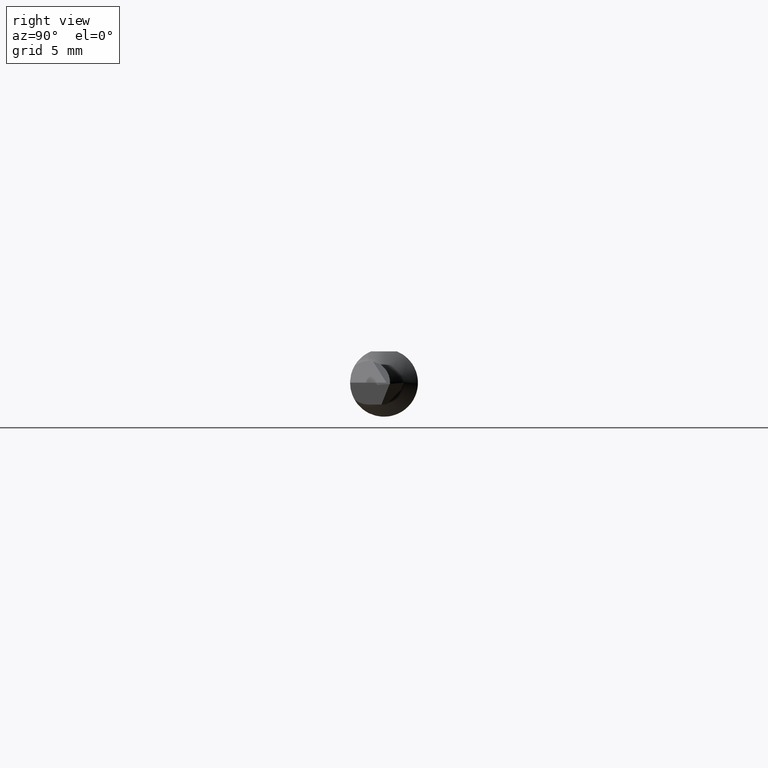
[diagram: clean part render]
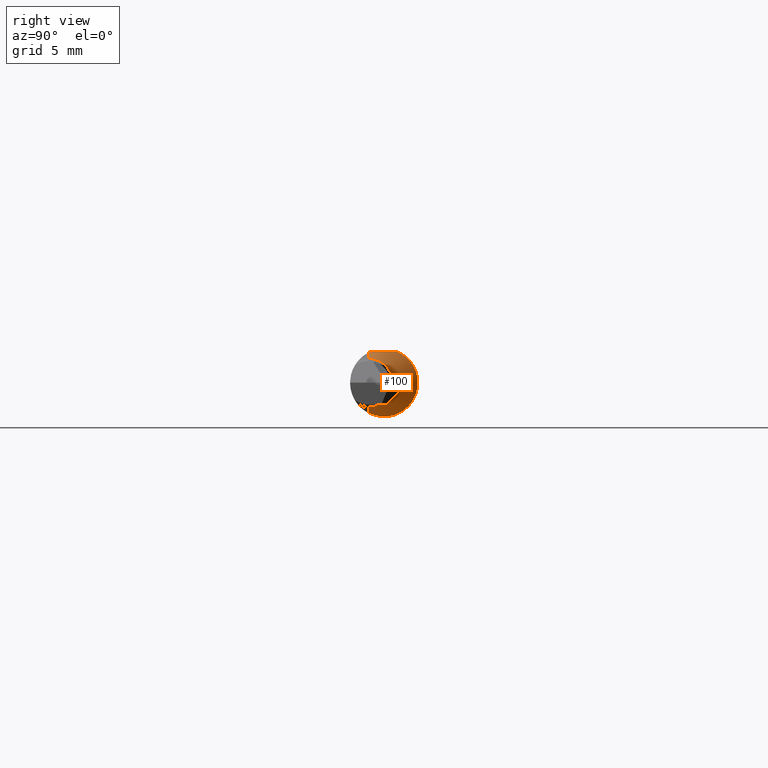
[diagram: same view with one face highlighted and labeled with its STEP entity id]
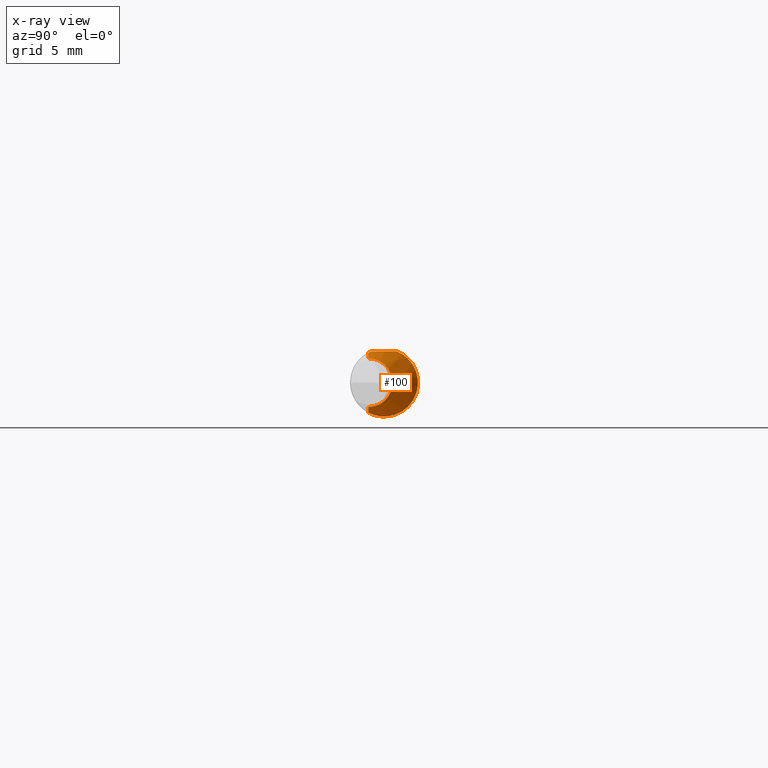
[diagram: x-ray of the same camera — body ghosted, the highlighted face saturated]
A machine part, right view. The second image highlights one B-rep face of the part: STEP entity #100.
The next image is the same camera in x-ray: the body ghosted, the highlighted face saturated — about 9% of this face is hidden behind the body in this view.
In plain terms, the highlighted conical surface has half-angle 45 deg.
Its self-contained STEP definition (entity closure, byte-faithful):
#1 = CARTESIAN_POINT ( 'NONE',  ( 1.401162578112211898, -0.02137516006684752473, -0.09132136495557872935 ) ) ;
#9 = CARTESIAN_POINT ( 'NONE',  ( 1.373563078640440027, 0.04680750307691909640, 0.08129727678532755464 ) ) ;
#16 = B_SPLINE_CURVE_WITH_KNOTS ( 'NONE', 3,
 ( #386, #636, #788, #805 ),
 .UNSPECIFIED., .F., .F.,
 ( 4, 4 ),
 ( 5.729164479846337672E-07, 0.0002485545944389308645 ),
 .UNSPECIFIED. ) ;
#26 = EDGE_CURVE ( 'NONE', #819, #767, #910, .T. ) ;
#50 = DIRECTION ( 'NONE',  ( -1.000000000000000000, -0.000000000000000000, -0.000000000000000000 ) ) ;
#59 = CARTESIAN_POINT ( 'NONE',  ( 1.385742326738735430, 0.01455546558514134343, -0.09266009913134311271 ) ) ;
#64 = CARTESIAN_POINT ( 'NONE',  ( 1.358300457160753538, 0.09202461176102584572, -0.01829547249540556045 ) ) ;
#68 = CARTESIAN_POINT ( 'NONE',  ( 1.359020195642278050, 0.08977100142499548630, 0.02728114714779963229 ) ) ;
#79 = CARTESIAN_POINT ( 'NONE',  ( 1.393265014012250669, -0.003655424042671530805, -0.09371940383682354769 ) ) ;
#100 = ADVANCED_FACE ( 'NONE', ( #188 ), #897, .T. ) ;
#113 = CARTESIAN_POINT ( 'NONE',  ( 1.377701525703422858, 0.03551619348973097945, 0.08659999999999998255 ) ) ;
#141 = CARTESIAN_POINT ( 'NONE',  ( 1.367491920919019943, 0.06414576699549900951, -0.06845644935455037772 ) ) ;
#142 = LINE ( 'NONE', #146, #239 ) ;
#145 = CARTESIAN_POINT ( 'NONE',  ( 1.376719064373899792, 0.03812469162702807057, -0.08571015254603478462 ) ) ;
#146 = CARTESIAN_POINT ( 'NONE',  ( 1.234999999999997655, -0.04359999999999997211, -0.2599999999999998979 ) ) ;
#149 = CARTESIAN_POINT ( 'NONE',  ( 1.365939244946421383, 0.06872653992798641309, -0.06386219844968353543 ) ) ;
#158 = CARTESIAN_POINT ( 'NONE',  ( 1.369879818681998040, 0.05722188270721517700, 0.07433603228884130831 ) ) ;
#159 = ORIENTED_EDGE ( 'NONE', *, *, #213, .T. ) ;
#166 = DIRECTION ( 'NONE',  ( -0.7071067811865516806, 0.000000000000000000, 0.7071067811865434649 ) ) ;
#188 = FACE_OUTER_BOUND ( 'NONE', #728, .T. ) ;
#196 = ORIENTED_EDGE ( 'NONE', *, *, #642, .T. ) ;
#213 = EDGE_CURVE ( 'NONE', #640, #996, #142, .T. ) ;
#217 = CARTESIAN_POINT ( 'NONE',  ( 1.398495826740103309, -0.01554707447101391984, -0.09249312004605585169 ) ) ;
#221 = CARTESIAN_POINT ( 'NONE',  ( 1.406623605259440080, -0.03278656602106057305, -0.08787223824268955430 ) ) ;
#230 = CARTESIAN_POINT ( 'NONE',  ( 1.427677669529663795, -0.04359999999999999987, -0.06732233047033617246 ) ) ;
#239 = VECTOR ( 'NONE', #643, 39.37007874015748143 ) ;
#243 = CARTESIAN_POINT ( 'NONE',  ( 1.361475077763426134, 0.08217488604661306317, 0.04527857650729982808 ) ) ;
#273 = VERTEX_POINT ( 'NONE', #468 ) ;
#291 = DIRECTION ( 'NONE',  ( 0.000000000000000000, 0.000000000000000000, 1.000000000000000000 ) ) ;
#301 = CARTESIAN_POINT ( 'NONE',  ( 1.357730217382799420, 0.09381949476875170446, 0.001379171797657438147 ) ) ;
#313 = CARTESIAN_POINT ( 'NONE',  ( 1.362096236419457984, 0.08028148374112675789, -0.04856492361454641665 ) ) ;
#327 = VECTOR ( 'NONE', #166, 39.37007874015748143 ) ;
#328 = CARTESIAN_POINT ( 'NONE',  ( 1.427677669529663795, -0.04360000000000000681, 0.06732233047033617246 ) ) ;
#333 = CARTESIAN_POINT ( 'NONE',  ( 1.412174883036604989, -0.04360000000000000681, 0.08282511696339464602 ) ) ;
#341 = CARTESIAN_POINT ( 'NONE',  ( 1.402683531163871899, -0.009962793248527794868, 0.08659999999999998255 ) ) ;
#374 = B_SPLINE_CURVE_WITH_KNOTS ( 'NONE', 3,
 ( #590, #688, #781, #341, #869, #430 ),
 .UNSPECIFIED., .F., .F.,
 ( 4, 2, 4 ),
 ( 0.004221996091487671167, 0.005214190001193092991, 0.006206383910898513948 ),
 .UNSPECIFIED. ) ;
#375 = CARTESIAN_POINT ( 'NONE',  ( 1.372725758621181180, 0.04914086561991816426, -0.07990555479593192123 ) ) ;
#380 = CARTESIAN_POINT ( 'NONE',  ( 1.357960659897338385, 0.09309458096140457717, -0.01172171954671197454 ) ) ;
#386 = CARTESIAN_POINT ( 'NONE',  ( 1.408023520836405362, -0.03551619348973036189, 0.08659999999999998255 ) ) ;
#399 = CARTESIAN_POINT ( 'NONE',  ( 1.368166364789387357, 0.06218498935449462417, 0.07024812893643285483 ) ) ;
#424 = EDGE_CURVE ( 'NONE', #819, #640, #614, .T. ) ;
#430 = CARTESIAN_POINT ( 'NONE',  ( 1.408023520836405362, -0.03551619348973036189, 0.08659999999999998255 ) ) ;
#460 = CARTESIAN_POINT ( 'NONE',  ( 1.412174883036604989, -0.04359999999999999987, -0.08282511696339464602 ) ) ;
#462 = CARTESIAN_POINT ( 'NONE',  ( 1.359393831565363531, 0.08861025287414564522, -0.03084601382962852759 ) ) ;
#468 = CARTESIAN_POINT ( 'NONE',  ( 1.408023520836405362, -0.03551619348973036189, 0.08659999999999998255 ) ) ;
#470 = CARTESIAN_POINT ( 'NONE',  ( 1.360511327969830431, 0.08514595224235765869, 0.03941142604992334958 ) ) ;
#491 = CARTESIAN_POINT ( 'NONE',  ( 1.365120089012977100, 0.07115311157076061044, 0.06114742213607372856 ) ) ;
#529 = ORIENTED_EDGE ( 'NONE', *, *, #424, .T. ) ;
#540 = CARTESIAN_POINT ( 'NONE',  ( 1.412174883036604989, -0.04359999999999999987, -0.08282511696339464602 ) ) ;
#552 = VERTEX_POINT ( 'NONE', #113 ) ;
#554 = CARTESIAN_POINT ( 'NONE',  ( 1.360152022803403637, 0.08625128397210292397, -0.03693757504936105718 ) ) ;
#561 = ORIENTED_EDGE ( 'NONE', *, *, #26, .F. ) ;
#563 = CARTESIAN_POINT ( 'NONE',  ( 1.375549505070180922, 0.04130584341941011262, 0.08422556204225985221 ) ) ;
#580 = AXIS2_PLACEMENT_3D ( 'NONE', #602, #50, #291 ) ;
#590 = CARTESIAN_POINT ( 'NONE',  ( 1.377701525703422858, 0.03551619348973097945, 0.08659999999999998255 ) ) ;
#602 = CARTESIAN_POINT ( 'NONE',  ( 1.234999999999997655, -0.04360000000000000681, 0.000000000000000000 ) ) ;
#614 = CIRCLE ( 'NONE', #698, 0.06732233047033618634 ) ;
#617 = B_SPLINE_CURVE_WITH_KNOTS ( 'NONE', 3,
 ( #540, #885, #221, #1, #217, #79, #1050, #59, #630, #720, #145, #375, #879, #141, #149, #1045, #313, #554, #462, #64, #380, #301, #625, #955, #68, #470, #243, #915, #491, #399, #158, #9, #563, #904 ),
 .UNSPECIFIED., .F., .F.,
 ( 4, 2, 2, 2, 2, 2, 2, 2, 2, 2, 2, 2, 2, 2, 2, 2, 4 ),
 ( 0.001449473354703524966, 0.001946690950049000460, 0.002443908545394475954, 0.002941126140739951447, 0.003438343736085426941, 0.003935561331430902435, 0.004432778926776377929, 0.004929996522121853422, 0.005427214117467328916, 0.005924431712812804410, 0.006421649308158279904, 0.006918866903503755397, 0.007416084498849231758, 0.007913302094194704650, 0.008410519689540180144, 0.008907737284885655638, 0.009404954880231131131 ),
 .UNSPECIFIED. ) ;
#625 = CARTESIAN_POINT ( 'NONE',  ( 1.357832322352278132, 0.09349711215871500669, 0.007900531263943064153 ) ) ;
#630 = CARTESIAN_POINT ( 'NONE',  ( 1.383392098380111790, 0.02051992070829877779, -0.09152830773666503772 ) ) ;
#636 = CARTESIAN_POINT ( 'NONE',  ( 1.409412477529317531, -0.03828698621588681739, 0.08546364883854394578 ) ) ;
#640 = VERTEX_POINT ( 'NONE', #230 ) ;
#642 = EDGE_CURVE ( 'NONE', #273, #767, #16, .T. ) ;
#643 = DIRECTION ( 'NONE',  ( -0.7071067811865516806, 8.659560562354883554E-17, -0.7071067811865434649 ) ) ;
#688 = CARTESIAN_POINT ( 'NONE',  ( 1.384990260883381286, 0.02470984047336751560, 0.08659999999999998255 ) ) ;
#698 = AXIS2_PLACEMENT_3D ( 'NONE', #746, #999, #905 ) ;
#710 = EDGE_CURVE ( 'NONE', #996, #552, #617, .T. ) ;
#720 = CARTESIAN_POINT ( 'NONE',  ( 1.378890268427389376, 0.03227618288569650273, -0.08807239227670383974 ) ) ;
#728 = EDGE_LOOP ( 'NONE', ( #529, #159, #1029, #877, #196, #561 ) ) ;
#746 = CARTESIAN_POINT ( 'NONE',  ( 1.427677669529663795, -0.04360000000000000681, 0.000000000000000000 ) ) ;
#747 = CARTESIAN_POINT ( 'NONE',  ( 1.234999999999997655, -0.04360000000000000681, 0.2599999999999998979 ) ) ;
#767 = VERTEX_POINT ( 'NONE', #333 ) ;
#781 = CARTESIAN_POINT ( 'NONE',  ( 1.391750224432351191, 0.01358083083026453974, 0.08660000000000001030 ) ) ;
#788 = CARTESIAN_POINT ( 'NONE',  ( 1.410796085082294482, -0.04098075454507678350, 0.08420391491770506942 ) ) ;
#805 = CARTESIAN_POINT ( 'NONE',  ( 1.412174883036604989, -0.04360000000000000681, 0.08282511696339464602 ) ) ;
#819 = VERTEX_POINT ( 'NONE', #328 ) ;
#869 = CARTESIAN_POINT ( 'NONE',  ( 1.406820612909631008, -0.02257368972052702441, 0.08660000000000001030 ) ) ;
#877 = ORIENTED_EDGE ( 'NONE', *, *, #895, .T. ) ;
#879 = CARTESIAN_POINT ( 'NONE',  ( 1.370885649790712923, 0.05435289654770198570, -0.07646389683077740862 ) ) ;
#885 = CARTESIAN_POINT ( 'NONE',  ( 1.409416727823433524, -0.03836044660242828724, -0.08558327217656612473 ) ) ;
#895 = EDGE_CURVE ( 'NONE', #552, #273, #374, .T. ) ;
#897 = CONICAL_SURFACE ( 'NONE', #580, 0.2599999999999998979, 0.7853981633974425058 ) ;
#904 = CARTESIAN_POINT ( 'NONE',  ( 1.377701525703422858, 0.03551619348973097945, 0.08659999999999998255 ) ) ;
#905 = DIRECTION ( 'NONE',  ( 0.000000000000000000, 0.000000000000000000, 1.000000000000000000 ) ) ;
#910 = LINE ( 'NONE', #747, #327 ) ;
#915 = CARTESIAN_POINT ( 'NONE',  ( 1.363785744349288009, 0.07515970287789011661, 0.05615941996324859409 ) ) ;
#955 = CARTESIAN_POINT ( 'NONE',  ( 1.358476095694653774, 0.09147652334571192145, 0.02088478041190022089 ) ) ;
#996 = VERTEX_POINT ( 'NONE', #460 ) ;
#999 = DIRECTION ( 'NONE',  ( -1.000000000000000000, -0.000000000000000000, -0.000000000000000000 ) ) ;
#1029 = ORIENTED_EDGE ( 'NONE', *, *, #710, .T. ) ;
#1045 = CARTESIAN_POINT ( 'NONE',  ( 1.363252824815949893, 0.07676139857450861581, -0.05393890405065062538 ) ) ;
#1050 = CARTESIAN_POINT ( 'NONE',  ( 1.390674899065930781, 0.002473900429620041596, -0.09376372094842916338 ) ) ;